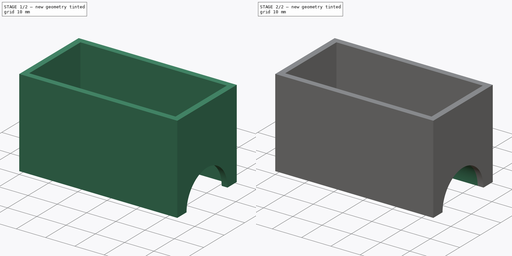
[diagram: build sequence overview — one tinted view per stage of 2, left to right]
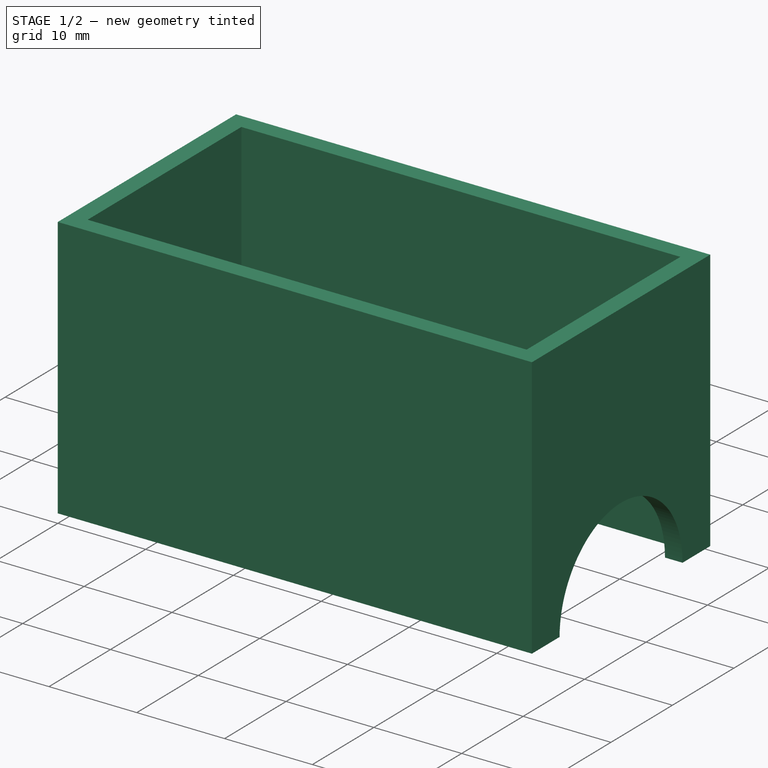
[diagram: stage 1 of 2 — iso view after this stage's code; geometry added in this stage tinted green]
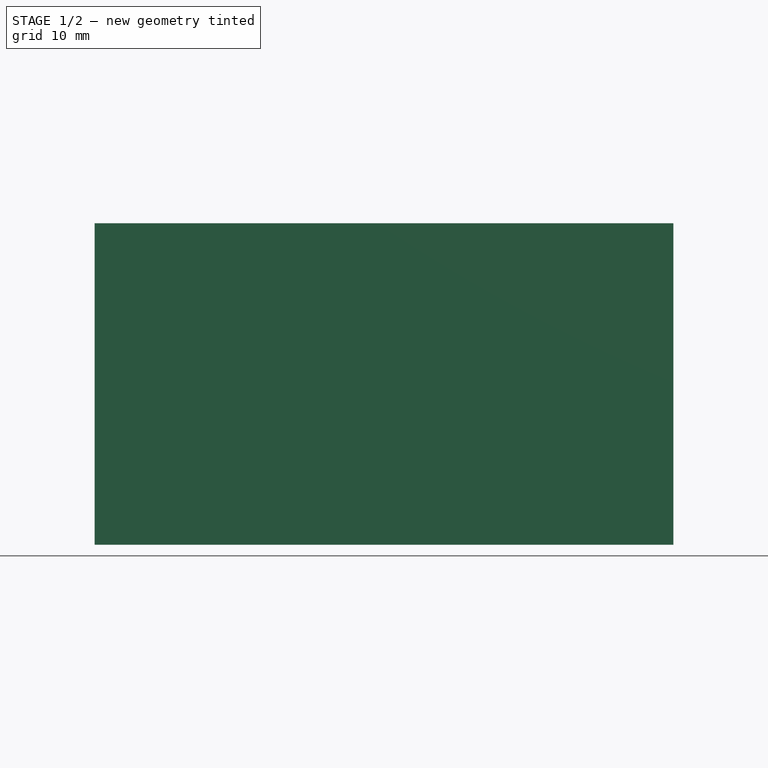
[diagram: stage 1 of 2 — front view after this stage's code; geometry added in this stage tinted green]
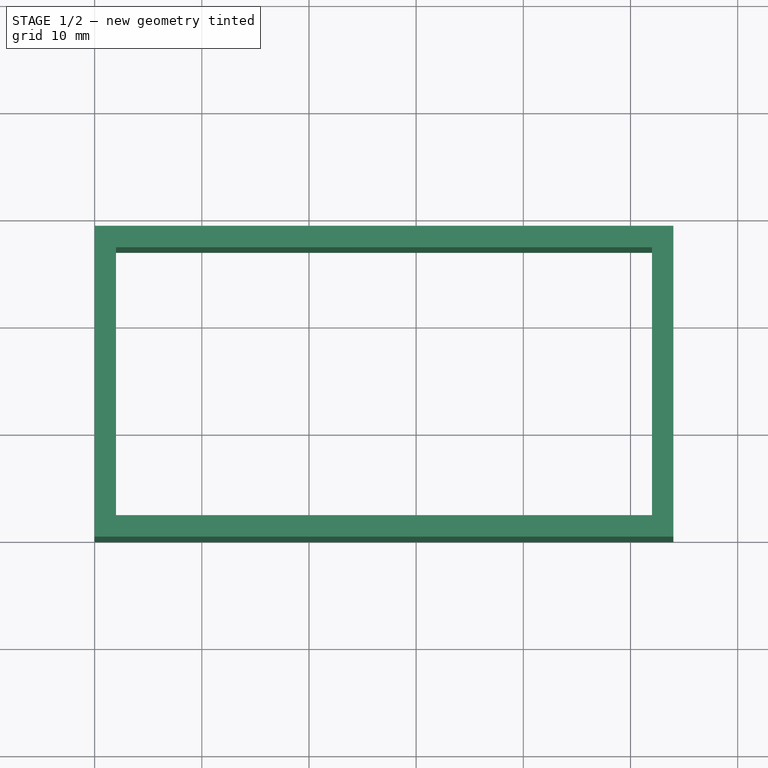
[diagram: stage 1 of 2 — top view after this stage's code; geometry added in this stage tinted green]
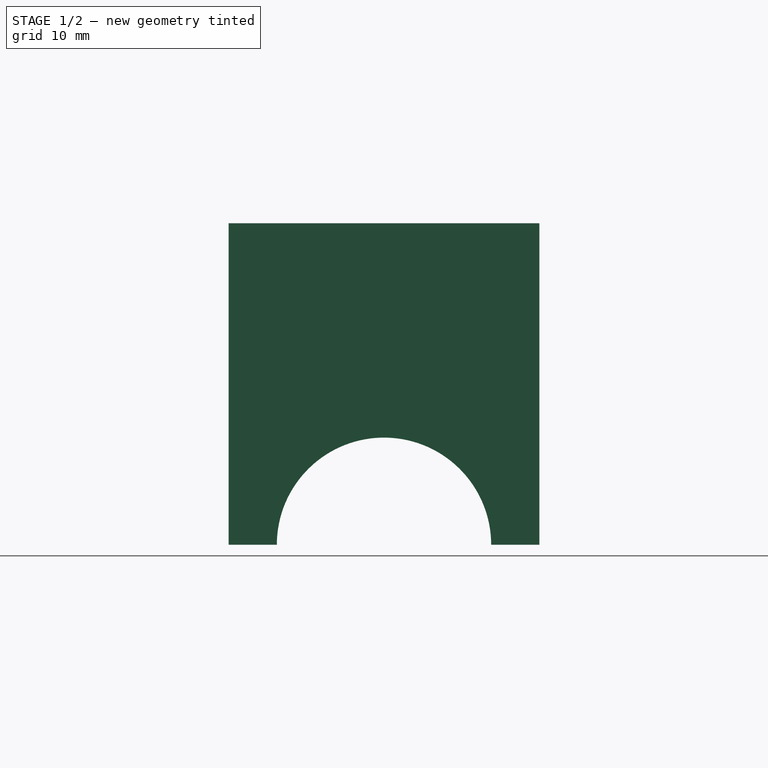
[diagram: stage 1 of 2 — right view after this stage's code; geometry added in this stage tinted green]
FCSTD DOCUMENT  (FreeCAD 0.19R24291 (Git))
Label: enclosure
License: All rights reserved
LicenseURL: http://en.wikipedia.org/wiki/All_rights_reserved
objects: Sketcher::SketchObject×3, PartDesign::Pad×2, PartDesign::Pocket×1, PartDesign::Body×1
note: 10 computed .brp shape members not serialized (recipe doc carries the construction recipe); baked Part::Feature solids carry a one-line shape summary decoded from their .brp

FEATURE [Sketcher::SketchObject] Sketch  label="top view"
  FullyConstrained = true
  MapMode = 5
  Support = -> [XY_Plane]
  sketch-geometry (12):
    g0: LineSegment StartX=0 StartY=0 StartZ=0 EndX=54 EndY=0 EndZ=0
    g1: LineSegment StartX=54 StartY=0 StartZ=0 EndX=54 EndY=29 EndZ=0
    g2: LineSegment StartX=54 StartY=29 StartZ=0 EndX=0 EndY=29 EndZ=0
    g3: LineSegment StartX=0 StartY=29 StartZ=0 EndX=0 EndY=0 EndZ=0
    g4: LineSegment StartX=2 StartY=2 StartZ=0 EndX=52 EndY=2 EndZ=0
    g5: LineSegment StartX=52 StartY=2 StartZ=0 EndX=52 EndY=27 EndZ=0
    g6: LineSegment StartX=52 StartY=27 StartZ=0 EndX=2 EndY=27 EndZ=0
    g7: LineSegment StartX=2 StartY=27 StartZ=0 EndX=2 EndY=2 EndZ=0
    g8: LineSegment StartX=2 StartY=2 StartZ=0 EndX=2 EndY=0 EndZ=0
    g9: LineSegment StartX=2 StartY=27 StartZ=0 EndX=2 EndY=29 EndZ=0
    g10: LineSegment StartX=52 StartY=27 StartZ=0 EndX=54 EndY=27 EndZ=0
    g11: LineSegment StartX=2 StartY=27 StartZ=0 EndX=0 EndY=27 EndZ=0
  constraints (35):
    c: Coincident(g0,g1)
    c: Coincident(g1,g2)
    c: Coincident(g2,g3)
    c: Coincident(g3,g0)
    c: Horizontal(g0)
    c: Horizontal(g2)
    c: Vertical(g1)
    c: Vertical(g3)
    c: Coincident(g4,g5)
    c: Coincident(g5,g6)
    c: Coincident(g6,g7)
    c: Coincident(g7,g4)
    c: Horizontal(g4)
    c: Horizontal(g6)
    c: Vertical(g5)
    c: Vertical(g7)
    c: Distance(g6) = 50  'inner X size'
    c: Distance(g5) = 25  'inner Y size'
    c: Coincident(g8,g4)
    c: PointOnObject(g8,g0)
    c: Vertical(g8)
    c: Distance(g8) = 2  'wall thickness'
    c: Coincident(g9,g6)
    c: PointOnObject(g9,g2)
    c: Vertical(g9)
    c: Coincident(g10,g5)
    c: PointOnObject(g10,g1)
    c: Horizontal(g10)
    c: Coincident(g11,g6)
    c: PointOnObject(g11,g3)
    c: Horizontal(g11)
    c: Equal(g8,g9)
    c: Equal(g8,g11)
    c: Equal(g8,g10)
    c: Coincident(g0,g-1)
FEATURE [PartDesign::Pad] Pad
  Direction = (1,1,1)
  Length = 30
  Length2 = 100
  Profile = -> Sketch
  Type = 0
FEATURE [Sketcher::SketchObject] Sketch001  label="base cutout"
  ExternalGeometry = -> [Pad]
  FullyConstrained = true
  MapMode = 5
  Placement = pos=(54,0,0) rot=(0.57735,0.57735,0.57735;2.0944rad)
  Support = -> [Pad]
  sketch-geometry (4):
    g0: ArcOfCircle CenterX=14.5 CenterY=0 CenterZ=0 NormalX=0 NormalY=0 NormalZ=1 AngleXU=0 Radius=10 StartAngle=3.4077e-12 EndAngle=3.14159
    g1: LineSegment StartX=0 StartY=5.51393e-11 StartZ=0 EndX=4.5 EndY=5.51393e-11 EndZ=0
    g2: LineSegment StartX=24.5 StartY=3.40771e-11 StartZ=0 EndX=29 EndY=3.40771e-11 EndZ=0
    g3: LineSegment StartX=4.5 StartY=5.51393e-11 StartZ=0 EndX=24.5 EndY=3.40771e-11 EndZ=0
  constraints (11):
    c: PointOnObject(g0,g-1)
    c: DistanceX(g0,g0) = 10  'base radius'
    c: Coincident(g1,g-1)
    c: Coincident(g1,g0)
    c: Horizontal(g1)
    c: Coincident(g2,g0)
    c: Coincident(g2,g-3)
    c: Horizontal(g2)
    c: Equal(g2,g1)
    c: Coincident(g3,g0)
    c: Coincident(g3,g0)
FEATURE [PartDesign::Pocket] Pocket
  BaseFeature = -> Pad
  Length = 5
  Length2 = 100
  Profile = -> Sketch001
  Type = 1
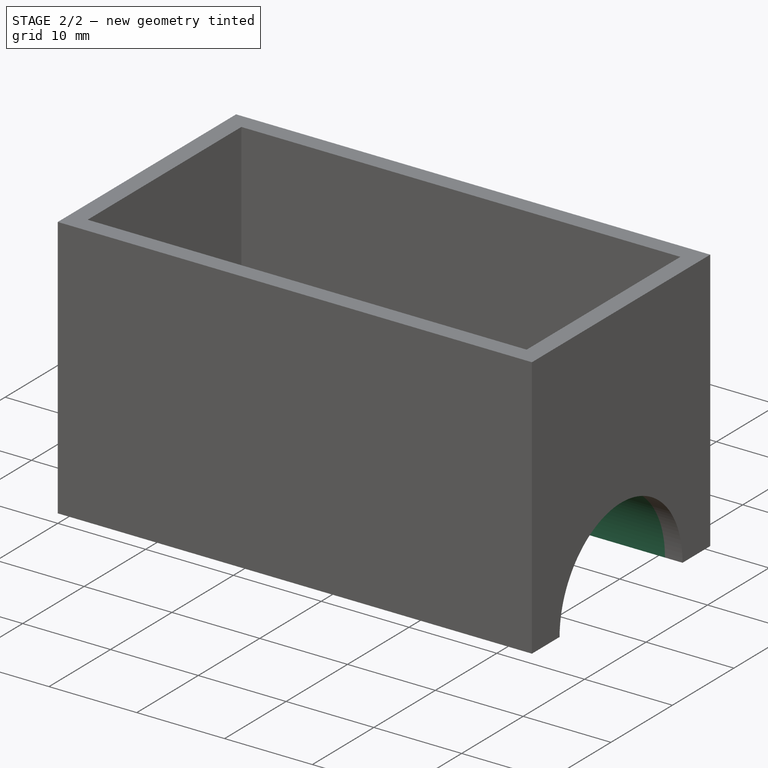
[diagram: stage 2 of 2 — iso view after this stage's code; geometry added in this stage tinted green]
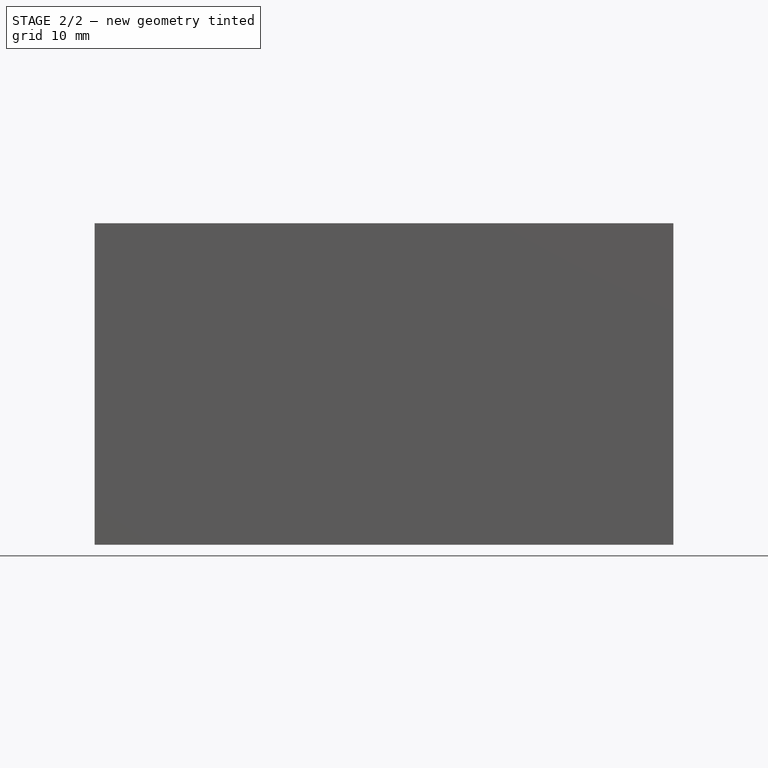
[diagram: stage 2 of 2 — front view after this stage's code; geometry added in this stage tinted green]
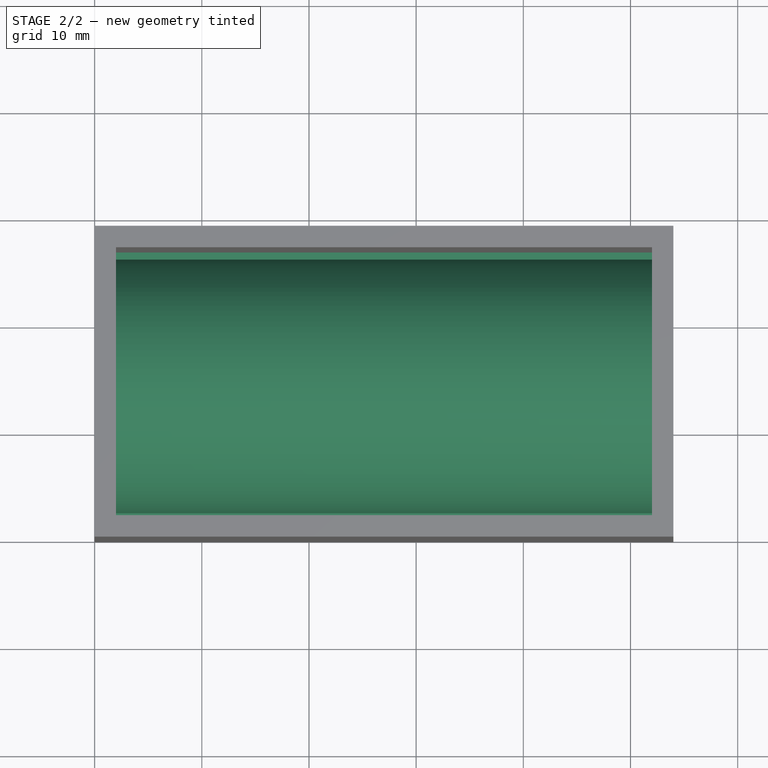
[diagram: stage 2 of 2 — top view after this stage's code; geometry added in this stage tinted green]
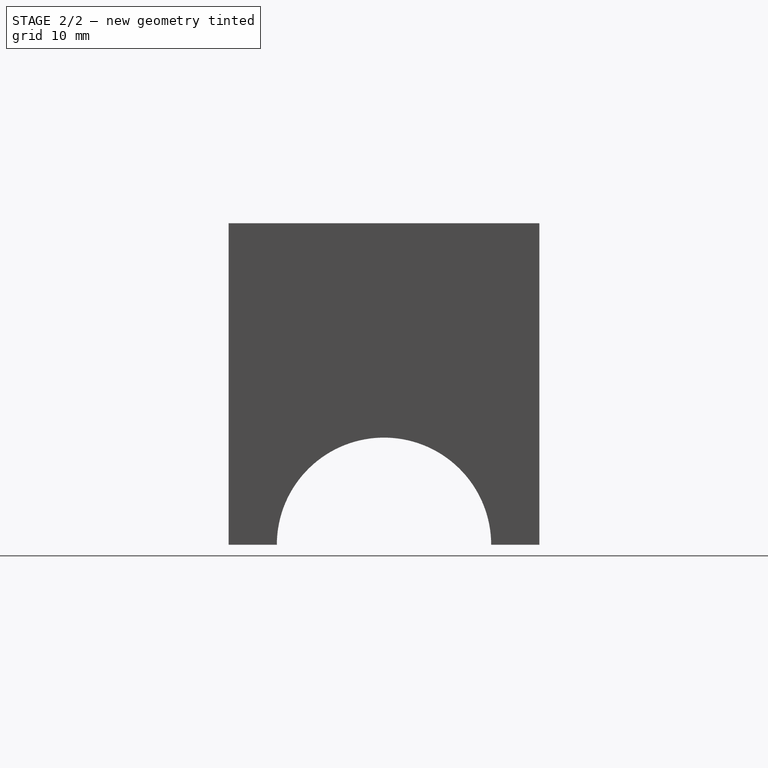
[diagram: stage 2 of 2 — right view after this stage's code; geometry added in this stage tinted green]
FEATURE [Sketcher::SketchObject] Sketch002  label="base wall"
  ExternalGeometry = -> [Pocket]
  FullyConstrained = true
  MapMode = 5
  Placement = pos=(54,0,0) rot=(0.57735,0.57735,0.57735;2.0944rad)
  Support = -> [Pocket]
  sketch-geometry (10):
    g0: ArcOfCircle CenterX=14.5 CenterY=4.5e-15 CenterZ=0 NormalX=0 NormalY=0 NormalZ=1 AngleXU=0 Radius=10 StartAngle=3.4073e-12 EndAngle=3.14159
    g1: LineSegment StartX=0 StartY=0 StartZ=0 EndX=0 EndY=2 EndZ=0
    g2: LineSegment StartX=0 StartY=2 StartZ=0 EndX=2.66784 EndY=2 EndZ=0
    g3: LineSegment StartX=29 StartY=3.40771e-11 StartZ=0 EndX=29 EndY=2 EndZ=0
    g4: LineSegment StartX=29 StartY=2 StartZ=0 EndX=26.3322 EndY=2 EndZ=0
    g5: ArcOfCircle CenterX=14.5 CenterY=4.5e-15 CenterZ=0 NormalX=0 NormalY=0 NormalZ=1 AngleXU=0 Radius=12 StartAngle=0.167448 EndAngle=2.97414
    g6: LineSegment StartX=2.66784 StartY=2 StartZ=0 EndX=4.63987 EndY=1.66667 EndZ=0
    g7: LineSegment StartX=4.63987 StartY=1.66667 StartZ=0 EndX=14.5 EndY=4.4e-15 EndZ=0
    g8: LineSegment StartX=0 StartY=0 StartZ=0 EndX=4.5 EndY=5.51393e-11 EndZ=0
    g9: LineSegment StartX=24.5 StartY=3.40771e-11 StartZ=0 EndX=29 EndY=3.40771e-11 EndZ=0
  constraints (27):
    c: PointOnObject(g1,g-2)
    c: Coincident(g2,g1)
    c: Horizontal(g2)
    c: PointOnObject(g3,g-4)
    c: Horizontal(g4)
    c: Coincident(g5,g0)
    c: Coincident(g5,g2)
    c: Coincident(g5,g4)
    c: Coincident(g6,g2)
    c: PointOnObject(g6,g0)
    c: Coincident(g7,g6)
    c: Coincident(g7,g0)
    c: Parallel(g6,g7)
    c: Distance(g6) = 2  'wall thickness'
    c: Equal(g6,g1)
    c: Equal(g6,g3)
    c: Coincident(g8,g1)
    c: Coincident(g8,g0)
    c: Coincident(g9,g0)
    c: Coincident(g9,g3)
    c: Horizontal(g9)
    c: Coincident(g4,g3)
    c: Coincident(g1,g-1)
    c: Coincident(g0,g-3)
    c: PointOnObject(g6,g-3)
    c: Vertical(g3)
    c: Coincident(g0,g-3)
FEATURE [PartDesign::Pad] Pad001
  BaseFeature = -> Pocket
  Direction = (1,1,1)
  Length = 10
  Length2 = 100
  Profile = -> Sketch002
  Type = 3
  UpToFace = -> Pocket [Face10]
FEATURE [PartDesign::Body] Body
  Group = -> [Sketch,Pad,Sketch001,Pocket,Sketch002,Pad001]
  Origin = -> Origin
  Tip = -> Pad001
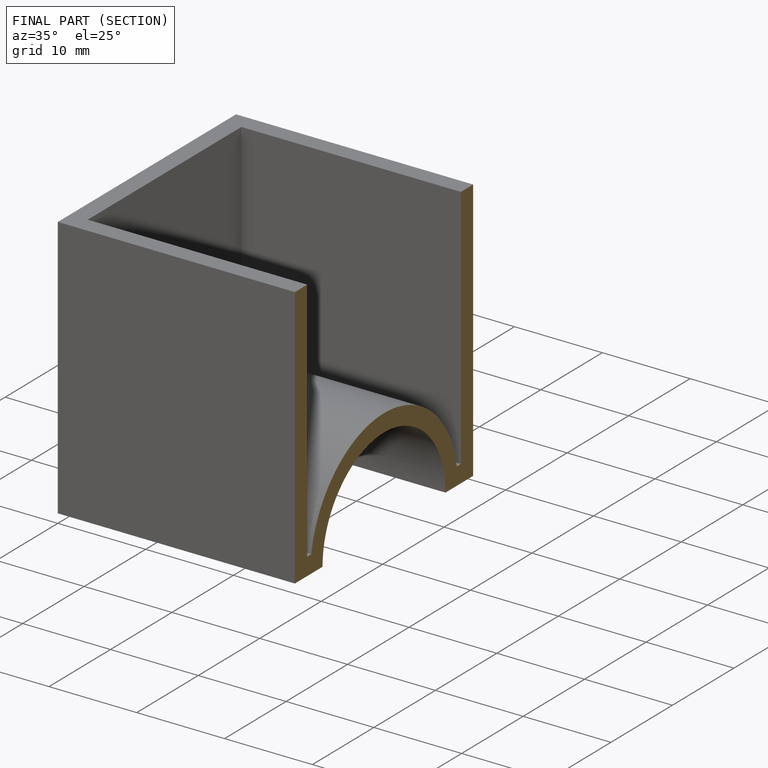
[diagram: finished part — half-section view (interior)]
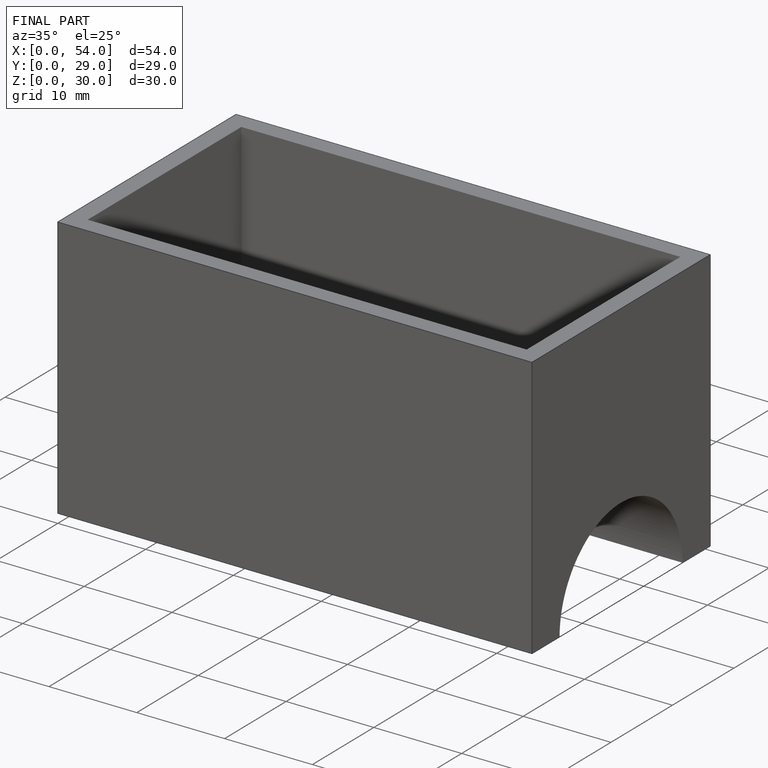
[diagram: finished part — iso view with bounding-box wireframe]
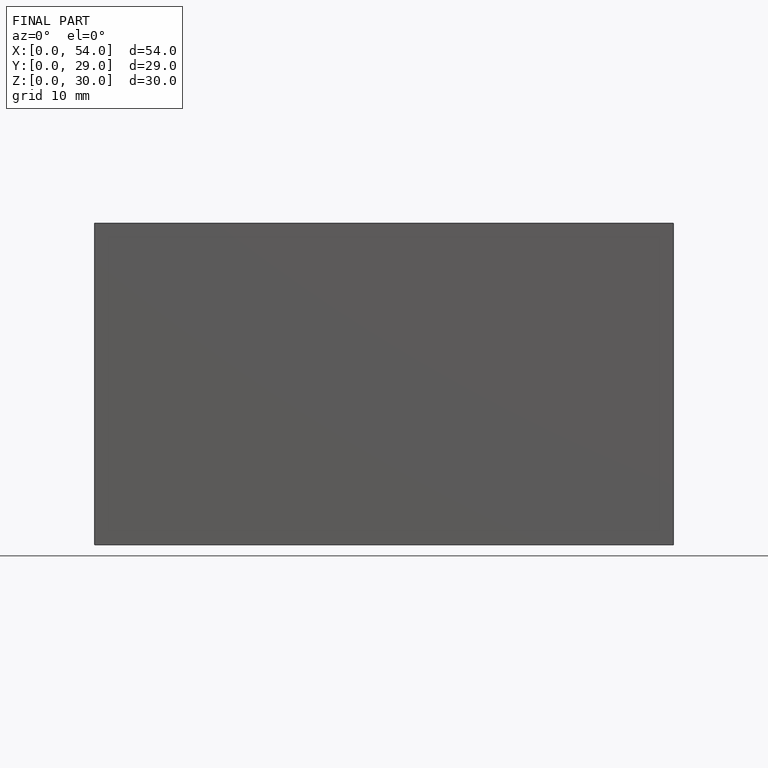
[diagram: finished part — front view with bounding-box wireframe]
